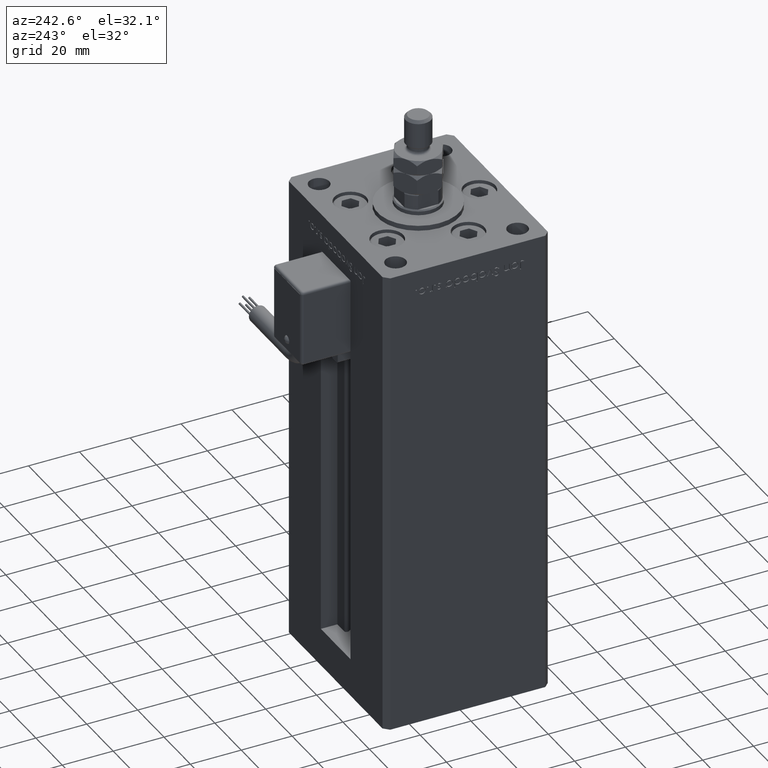
[diagram: clean part render]
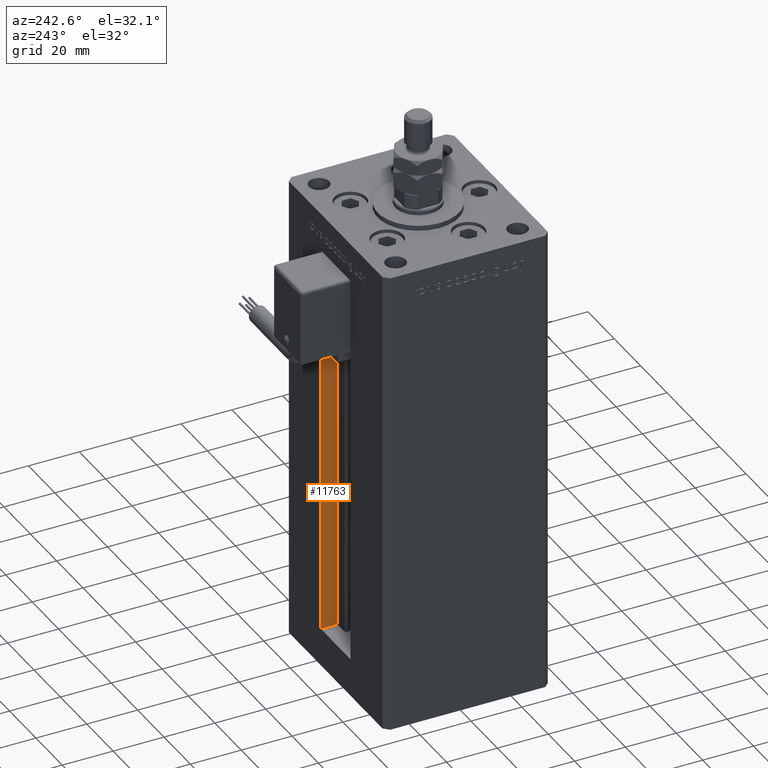
[diagram: same view with one face highlighted and labeled with its STEP entity id]
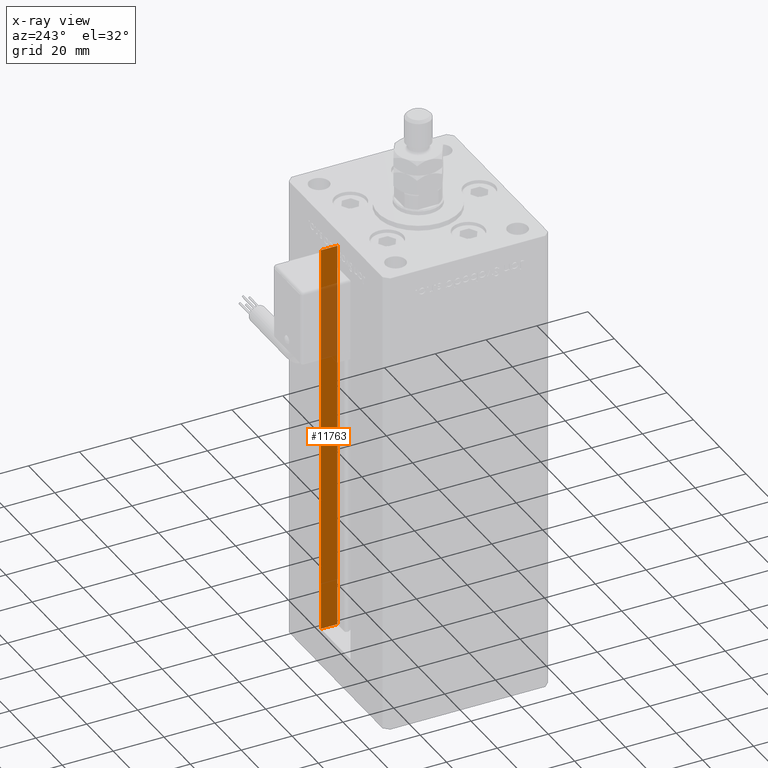
[diagram: x-ray of the same camera — body ghosted, the highlighted face saturated]
A machine part, auxiliary view. The second image highlights one B-rep face of the part: STEP entity #11763.
The next image is the same camera in x-ray: the body ghosted, the highlighted face saturated — about 19% of this face is hidden behind the body in this view.
In plain terms, the highlighted planar face has unit normal (1, 0, 0).
Its self-contained STEP definition (entity closure, byte-faithful):
#840 = LINE ( 'NONE', #39842, #4151 ) ;
#3724 = ORIENTED_EDGE ( 'NONE', *, *, #36615, .F. ) ;
#4151 = VECTOR ( 'NONE', #4297, 1000.000000000000000 ) ;
#4297 = DIRECTION ( 'NONE',  ( -0.000000000000000000, -1.000000000000000000, 0.000000000000000000 ) ) ;
#5324 = LINE ( 'NONE', #36007, #6971 ) ;
#6745 = DIRECTION ( 'NONE',  ( -0.000000000000000000, -0.000000000000000000, 1.000000000000000000 ) ) ;
#6971 = VECTOR ( 'NONE', #6745, 1000.000000000000000 ) ;
#9310 = CARTESIAN_POINT ( 'NONE',  ( 11.25000000000000178, 25.99999999999999289, 0.000000000000000000 ) ) ;
#9928 = LINE ( 'NONE', #23135, #18635 ) ;
#10074 = VERTEX_POINT ( 'NONE', #28593 ) ;
#11763 = ADVANCED_FACE ( 'NONE', ( #28968 ), #21488, .F. ) ;
#17289 = ORIENTED_EDGE ( 'NONE', *, *, #35830, .T. ) ;
#17357 = LINE ( 'NONE', #9310, #54396 ) ;
#18635 = VECTOR ( 'NONE', #40608, 1000.000000000000000 ) ;
#18899 = VERTEX_POINT ( 'NONE', #29889 ) ;
#20163 = CARTESIAN_POINT ( 'NONE',  ( 11.25000000000000178, 25.99999999999999289, 156.0000000000000000 ) ) ;
#21488 = PLANE ( 'NONE',  #49579 ) ;
#21653 = CARTESIAN_POINT ( 'NONE',  ( 11.25000000000000178, 25.99999999999999289, 0.000000000000000000 ) ) ;
#23135 = CARTESIAN_POINT ( 'NONE',  ( 11.25000000000000178, 25.99999999999999289, 0.000000000000000000 ) ) ;
#26810 = DIRECTION ( 'NONE',  ( 0.000000000000000000, 1.000000000000000000, 0.000000000000000000 ) ) ;
#28593 = CARTESIAN_POINT ( 'NONE',  ( 11.25000000000000178, 32.49999999999999289, 0.000000000000000000 ) ) ;
#28968 = FACE_OUTER_BOUND ( 'NONE', #33075, .T. ) ;
#29251 = DIRECTION ( 'NONE',  ( 0.000000000000000000, 0.000000000000000000, -1.000000000000000000 ) ) ;
#29889 = CARTESIAN_POINT ( 'NONE',  ( 11.24999999999999467, 32.49999999999999289, 156.0000000000000000 ) ) ;
#33075 = EDGE_LOOP ( 'NONE', ( #37570, #3724, #17289, #41669 ) ) ;
#35830 = EDGE_CURVE ( 'NONE', #45542, #52050, #9928, .T. ) ;
#36007 = CARTESIAN_POINT ( 'NONE',  ( 11.25000000000000178, 32.49999999999999289, 0.000000000000000000 ) ) ;
#36615 = EDGE_CURVE ( 'NONE', #45542, #10074, #17357, .T. ) ;
#37570 = ORIENTED_EDGE ( 'NONE', *, *, #42304, .F. ) ;
#38971 = CARTESIAN_POINT ( 'NONE',  ( 11.25000000000000178, 25.99999999999999289, 0.000000000000000000 ) ) ;
#39842 = CARTESIAN_POINT ( 'NONE',  ( 11.25000000000000178, 0.000000000000000000, 156.0000000000000000 ) ) ;
#39871 = EDGE_CURVE ( 'NONE', #18899, #52050, #840, .T. ) ;
#40608 = DIRECTION ( 'NONE',  ( -0.000000000000000000, -0.000000000000000000, 1.000000000000000000 ) ) ;
#41669 = ORIENTED_EDGE ( 'NONE', *, *, #39871, .F. ) ;
#42304 = EDGE_CURVE ( 'NONE', #10074, #18899, #5324, .T. ) ;
#45542 = VERTEX_POINT ( 'NONE', #21653 ) ;
#46452 = DIRECTION ( 'NONE',  ( 1.000000000000000000, -0.000000000000000000, 0.000000000000000000 ) ) ;
#49579 = AXIS2_PLACEMENT_3D ( 'NONE', #38971, #46452, #29251 ) ;
#52050 = VERTEX_POINT ( 'NONE', #20163 ) ;
#54396 = VECTOR ( 'NONE', #26810, 1000.000000000000000 ) ;